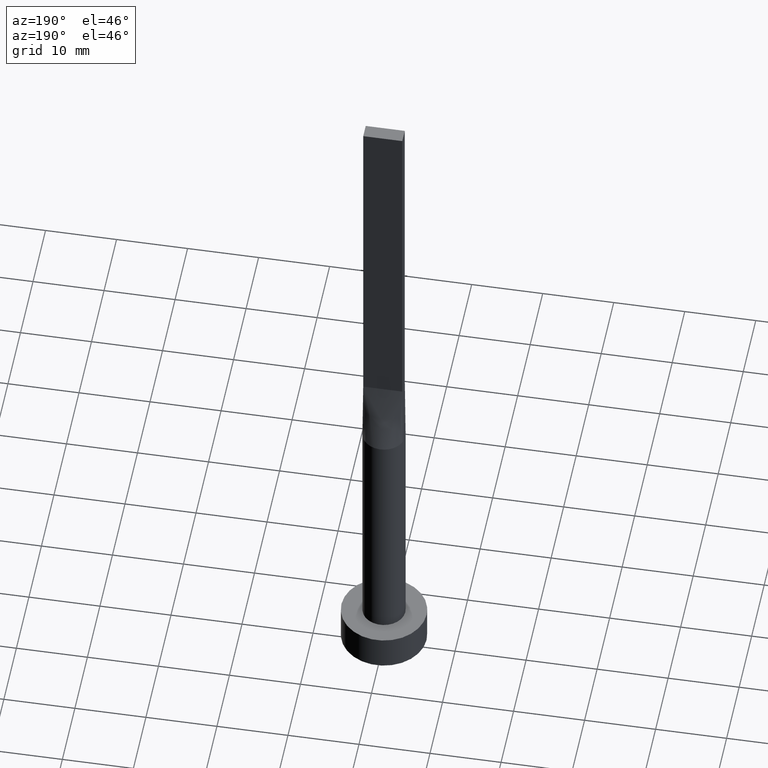
[diagram: clean part render]
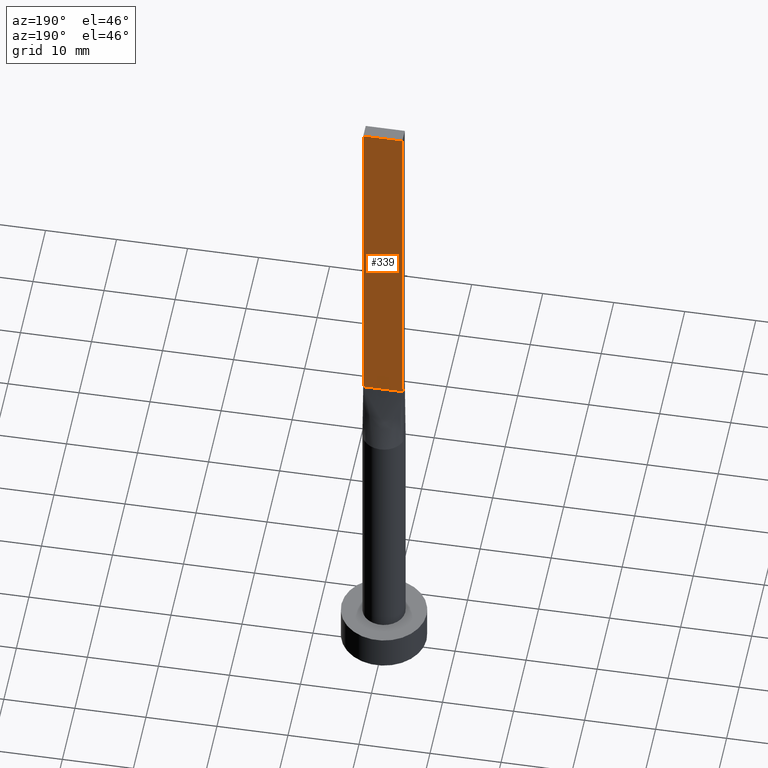
[diagram: same view with one face highlighted and labeled with its STEP entity id]
A machine part, auxiliary view. The second image highlights one B-rep face of the part: STEP entity #339.
In plain terms, the highlighted planar face has unit normal (0, -1, 0).
Its self-contained STEP definition (entity closure, byte-faithful):
#2 = LINE ( 'NONE', #498, #318 ) ;
#3 = VERTEX_POINT ( 'NONE', #186 ) ;
#12 = PLANE ( 'NONE',  #220 ) ;
#24 = CARTESIAN_POINT ( 'NONE',  ( -2.749999999999999556, 1.000000000000000000, 100.0000000000000000 ) ) ;
#27 = CARTESIAN_POINT ( 'NONE',  ( -2.749999999999999556, 1.000000000000000000, 50.00000000000000000 ) ) ;
#29 = ORIENTED_EDGE ( 'NONE', *, *, #195, .F. ) ;
#67 = CARTESIAN_POINT ( 'NONE',  ( -2.749999999999999556, 1.000000000000000000, 50.00000000000000000 ) ) ;
#68 = VECTOR ( 'NONE', #512, 1000.000000000000000 ) ;
#82 = CARTESIAN_POINT ( 'NONE',  ( 2.749999999999999556, 1.000000000000000000, 100.0000000000000000 ) ) ;
#86 = EDGE_CURVE ( 'NONE', #146, #3, #485, .T. ) ;
#102 = LINE ( 'NONE', #283, #68 ) ;
#107 = EDGE_CURVE ( 'NONE', #146, #453, #2, .T. ) ;
#135 = CARTESIAN_POINT ( 'NONE',  ( 2.749999999999999556, 1.000000000000000000, 100.0000000000000000 ) ) ;
#142 = ORIENTED_EDGE ( 'NONE', *, *, #448, .T. ) ;
#146 = VERTEX_POINT ( 'NONE', #446 ) ;
#171 = FACE_OUTER_BOUND ( 'NONE', #364, .T. ) ;
#186 = CARTESIAN_POINT ( 'NONE',  ( 2.749999999999999556, 1.000000000000000000, 50.00000000000000000 ) ) ;
#195 = EDGE_CURVE ( 'NONE', #453, #416, #102, .T. ) ;
#220 = AXIS2_PLACEMENT_3D ( 'NONE', #135, #354, #529 ) ;
#235 = VECTOR ( 'NONE', #250, 1000.000000000000000 ) ;
#239 = ORIENTED_EDGE ( 'NONE', *, *, #107, .F. ) ;
#250 = DIRECTION ( 'NONE',  ( -0.000000000000000000, -0.000000000000000000, -1.000000000000000000 ) ) ;
#283 = CARTESIAN_POINT ( 'NONE',  ( -2.749999999999999556, 1.000000000000000000, 100.0000000000000000 ) ) ;
#318 = VECTOR ( 'NONE', #452, 1000.000000000000000 ) ;
#326 = ORIENTED_EDGE ( 'NONE', *, *, #86, .T. ) ;
#339 = ADVANCED_FACE ( 'NONE', ( #171 ), #12, .F. ) ;
#354 = DIRECTION ( 'NONE',  ( 0.000000000000000000, -1.000000000000000000, 0.000000000000000000 ) ) ;
#364 = EDGE_LOOP ( 'NONE', ( #142, #29, #239, #326 ) ) ;
#416 = VERTEX_POINT ( 'NONE', #27 ) ;
#422 = DIRECTION ( 'NONE',  ( -1.000000000000000000, -0.000000000000000000, -0.000000000000000000 ) ) ;
#443 = VECTOR ( 'NONE', #422, 1000.000000000000000 ) ;
#446 = CARTESIAN_POINT ( 'NONE',  ( 2.749999999999999556, 1.000000000000000000, 100.0000000000000000 ) ) ;
#448 = EDGE_CURVE ( 'NONE', #3, #416, #468, .T. ) ;
#452 = DIRECTION ( 'NONE',  ( -1.000000000000000000, 0.000000000000000000, 0.000000000000000000 ) ) ;
#453 = VERTEX_POINT ( 'NONE', #24 ) ;
#468 = LINE ( 'NONE', #67, #443 ) ;
#485 = LINE ( 'NONE', #82, #235 ) ;
#498 = CARTESIAN_POINT ( 'NONE',  ( 2.749999999999999556, 1.000000000000000000, 100.0000000000000000 ) ) ;
#512 = DIRECTION ( 'NONE',  ( -0.000000000000000000, -0.000000000000000000, -1.000000000000000000 ) ) ;
#529 = DIRECTION ( 'NONE',  ( 0.000000000000000000, -0.000000000000000000, -1.000000000000000000 ) ) ;